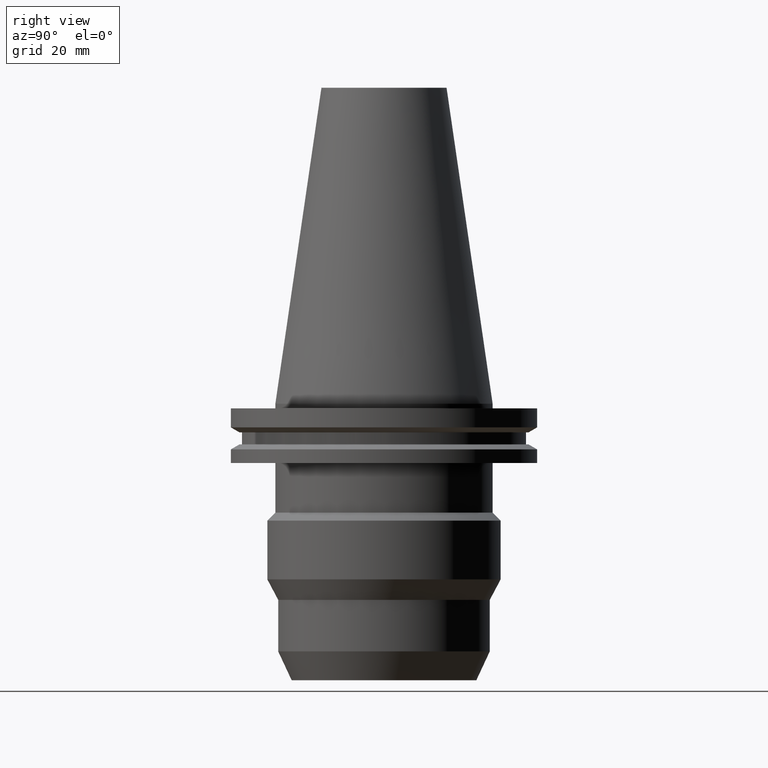
[diagram: clean part render]
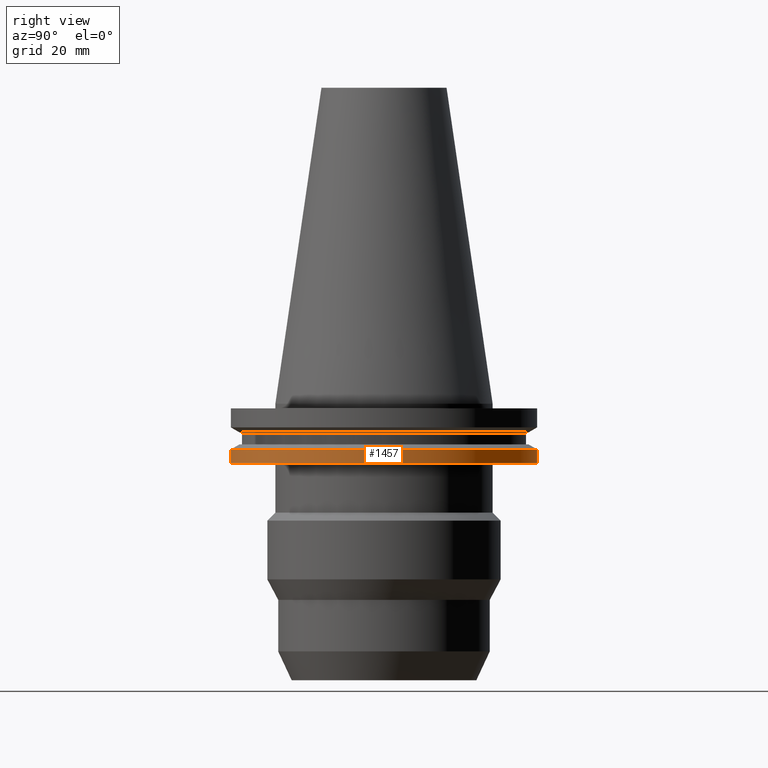
[diagram: same view with one face highlighted and labeled with its STEP entity id]
A machine part, right view. The second image highlights one B-rep face of the part: STEP entity #1457.
In plain terms, the highlighted cylindrical surface (partial cylindrical patch) has radius 49.2125 mm, axis along (0, 0, 1).
Its self-contained STEP definition (entity closure, byte-faithful):
#192=CARTESIAN_POINT('',(0.E0,0.E0,-1.905E1));
#193=DIRECTION('',(0.E0,0.E0,1.E0));
#194=DIRECTION('',(-9.647287063661E-1,-2.632461264923E-1,0.E0));
#195=AXIS2_PLACEMENT_3D('',#192,#193,#194);
#200=CARTESIAN_POINT('',(0.E0,0.E0,-1.905E1));
#201=DIRECTION('',(0.E0,0.E0,1.E0));
#202=DIRECTION('',(0.E0,-1.E0,0.E0));
#203=AXIS2_PLACEMENT_3D('',#200,#201,#202);
#208=CARTESIAN_POINT('',(0.E0,0.E0,-1.905E1));
#209=DIRECTION('',(0.E0,0.E0,1.E0));
#210=DIRECTION('',(0.E0,1.E0,0.E0));
#211=AXIS2_PLACEMENT_3D('',#208,#209,#210);
#409=DIRECTION('',(-1.341459893288E-13,-4.848650216703E-14,1.E0));
#410=VECTOR('',#409,4.396333230921E0);
#411=CARTESIAN_POINT('',(-4.747671146204E1,-1.2955E1,-1.905E1));
#412=LINE('',#411,#410);
#416=DIRECTION('',(1.244486888954E-13,-4.808244798230E-14,-1.E0));
#417=VECTOR('',#416,4.396333230921E0);
#418=CARTESIAN_POINT('',(-4.747671146204E1,1.2955E1,-1.465366676908E1));
#419=LINE('',#418,#417);
#423=CARTESIAN_POINT('',(0.E0,0.E0,-1.465366676908E1));
#424=DIRECTION('',(0.E0,0.E0,-1.E0));
#425=DIRECTION('',(-9.647287063661E-1,2.632461264923E-1,0.E0));
#426=AXIS2_PLACEMENT_3D('',#423,#424,#425);
#431=CARTESIAN_POINT('',(0.E0,0.E0,-1.465366676908E1));
#432=DIRECTION('',(0.E0,0.E0,-1.E0));
#433=DIRECTION('',(0.E0,1.E0,0.E0));
#434=AXIS2_PLACEMENT_3D('',#431,#432,#433);
#439=CARTESIAN_POINT('',(0.E0,0.E0,-1.465366676908E1));
#440=DIRECTION('',(0.E0,0.E0,-1.E0));
#441=DIRECTION('',(0.E0,-1.E0,0.E0));
#442=AXIS2_PLACEMENT_3D('',#439,#440,#441);
#447=CARTESIAN_POINT('',(-4.747671146204E1,-1.2955E1,-1.465366676908E1));
#1038=CARTESIAN_POINT('',(-4.747671146204E1,-1.2955E1,-1.905E1));
#1039=VERTEX_POINT('',#1038);
#1040=CARTESIAN_POINT('',(-5.162120053082E-14,4.92125E1,-1.905E1));
#1041=CARTESIAN_POINT('',(-4.747671146204E1,1.2955E1,-1.905E1));
#1042=VERTEX_POINT('',#1040);
#1043=VERTEX_POINT('',#1041);
#1044=CARTESIAN_POINT('',(-5.990466821754E-14,-4.92125E1,-1.905E1));
#1045=VERTEX_POINT('',#1044);
#1125=VERTEX_POINT('',#447);
#1145=CARTESIAN_POINT('',(-4.747671146204E1,1.2955E1,-1.465366676908E1));
#1146=VERTEX_POINT('',#1145);
#1150=CARTESIAN_POINT('',(1.421085471520E-14,4.92125E1,-1.465366676908E1));
#1151=VERTEX_POINT('',#1150);
#1152=CARTESIAN_POINT('',(-2.788153330005E-14,-4.92125E1,-1.465366676908E1));
#1153=VERTEX_POINT('',#1152);
#1439=CARTESIAN_POINT('',(0.E0,0.E0,-9.8425E1));
#1440=DIRECTION('',(0.E0,0.E0,1.E0));
#1441=DIRECTION('',(0.E0,1.E0,0.E0));
#1442=AXIS2_PLACEMENT_3D('',#1439,#1440,#1441);
#1443=CYLINDRICAL_SURFACE('',#1442,4.92125E1);
#1444=ORIENTED_EDGE('',*,*,#1301,.F.);
#1445=ORIENTED_EDGE('',*,*,#1299,.F.);
#1446=ORIENTED_EDGE('',*,*,#1297,.F.);
#1447=ORIENTED_EDGE('',*,*,#1335,.T.);
#1449=ORIENTED_EDGE('',*,*,#1448,.F.);
#1451=ORIENTED_EDGE('',*,*,#1450,.F.);
#1453=ORIENTED_EDGE('',*,*,#1452,.F.);
#1454=ORIENTED_EDGE('',*,*,#1422,.T.);
#1455=EDGE_LOOP('',(#1444,#1445,#1446,#1447,#1449,#1451,#1453,#1454));
#1456=FACE_OUTER_BOUND('',#1455,.F.);
#196=CIRCLE('',#195,4.92125E1);
#204=CIRCLE('',#203,4.92125E1);
#212=CIRCLE('',#211,4.92125E1);
#427=CIRCLE('',#426,4.92125E1);
#435=CIRCLE('',#434,4.92125E1);
#443=CIRCLE('',#442,4.92125E1);
#1297=EDGE_CURVE('',#1039,#1045,#196,.T.);
#1299=EDGE_CURVE('',#1045,#1042,#204,.T.);
#1301=EDGE_CURVE('',#1042,#1043,#212,.T.);
#1335=EDGE_CURVE('',#1039,#1125,#412,.T.);
#1422=EDGE_CURVE('',#1146,#1043,#419,.T.);
#1448=EDGE_CURVE('',#1153,#1125,#443,.T.);
#1450=EDGE_CURVE('',#1151,#1153,#435,.T.);
#1452=EDGE_CURVE('',#1146,#1151,#427,.T.);
#1457=ADVANCED_FACE('',(#1456),#1443,.T.);